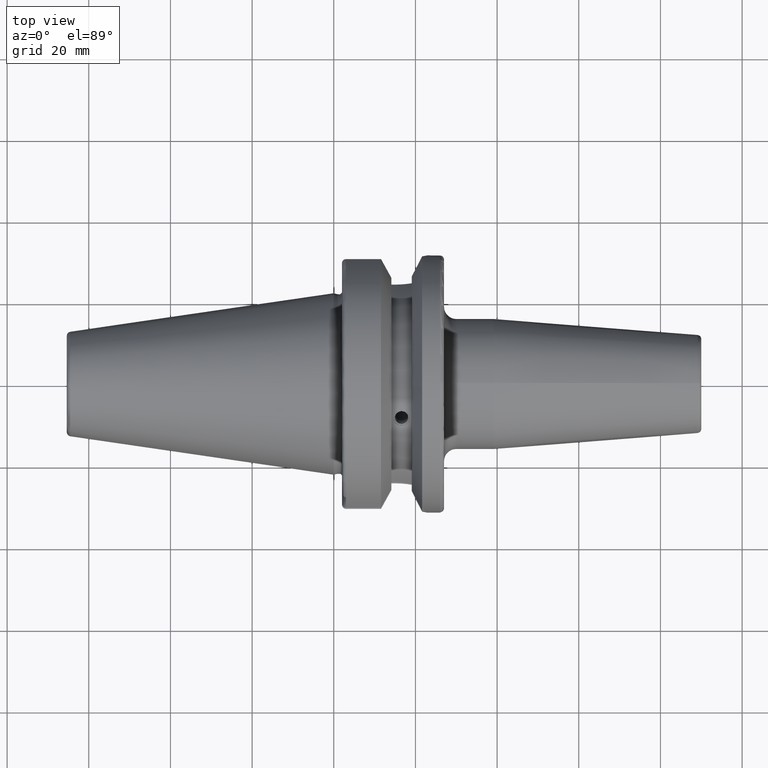
[diagram: clean part render]
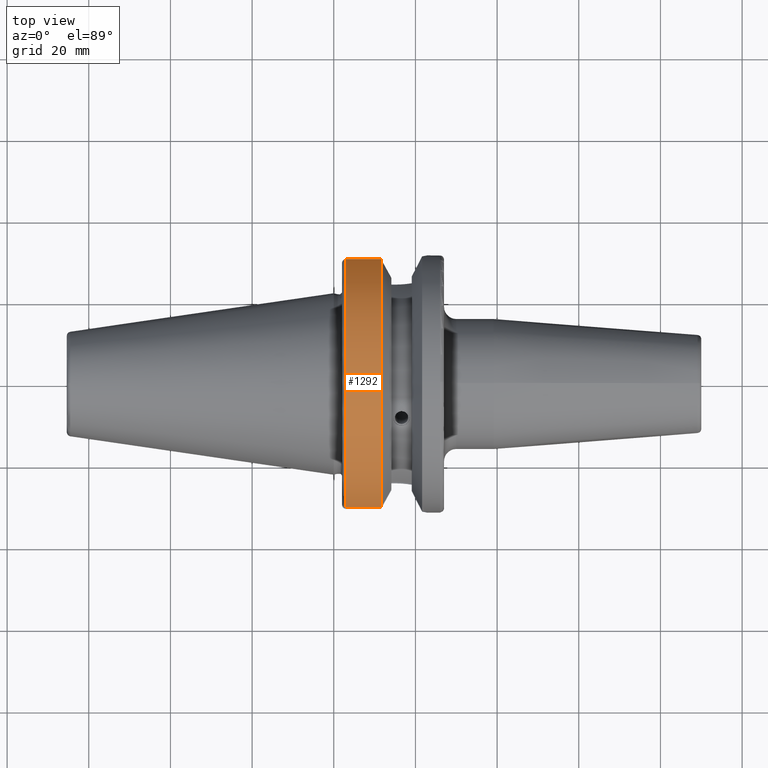
[diagram: same view with one face highlighted and labeled with its STEP entity id]
A machine part, top view. The second image highlights one B-rep face of the part: STEP entity #1292.
In plain terms, the highlighted cylindrical surface (partial cylindrical patch) has radius 31.5 mm, axis along (1, 0, 0).
Its self-contained STEP definition (entity closure, byte-faithful):
#118=CYLINDRICAL_SURFACE('',#1481,31.5);
#204=FACE_OUTER_BOUND('',#298,.T.);
#298=EDGE_LOOP('',(#1170,#1171,#1172,#1173));
#374=CIRCLE('',#1480,31.5);
#375=CIRCLE('',#1482,31.5000000000001);
#415=LINE('',#2298,#481);
#435=LINE('',#2452,#501);
#481=VECTOR('',#1729,10.);
#501=VECTOR('',#1797,10.);
#587=VERTEX_POINT('',#2293);
#588=VERTEX_POINT('',#2297);
#617=VERTEX_POINT('',#2440);
#618=VERTEX_POINT('',#2451);
#743=EDGE_CURVE('',#588,#587,#415,.T.);
#786=EDGE_CURVE('',#618,#617,#435,.T.);
#817=EDGE_CURVE('',#617,#588,#374,.T.);
#818=EDGE_CURVE('',#618,#587,#375,.T.);
#1170=ORIENTED_EDGE('',*,*,#743,.T.);
#1171=ORIENTED_EDGE('',*,*,#818,.F.);
#1172=ORIENTED_EDGE('',*,*,#786,.T.);
#1173=ORIENTED_EDGE('',*,*,#817,.T.);
#1292=ADVANCED_FACE('',(#204),#118,.T.);
#1480=AXIS2_PLACEMENT_3D('',#2517,#1878,#1879);
#1481=AXIS2_PLACEMENT_3D('',#2518,#1880,#1881);
#1482=AXIS2_PLACEMENT_3D('',#2519,#1882,#1883);
#1729=DIRECTION('',(1.,0.,0.));
#1797=DIRECTION('',(-1.,0.,0.));
#1878=DIRECTION('center_axis',(1.,0.,0.));
#1879=DIRECTION('ref_axis',(0.,0.,-1.));
#1880=DIRECTION('center_axis',(1.,0.,0.));
#1881=DIRECTION('ref_axis',(0.,1.,0.));
#1882=DIRECTION('center_axis',(1.,0.,0.));
#1883=DIRECTION('ref_axis',(0.,0.,-1.));
#2293=CARTESIAN_POINT('',(11.5690363073382,-30.4540227227866,8.05));
#2297=CARTESIAN_POINT('',(2.99999999999999,-30.4540227227866,8.05));
#2298=CARTESIAN_POINT('',(7.28451815366907,-30.4540227227866,8.05));
#2440=CARTESIAN_POINT('',(2.99999999999999,30.4540227227866,8.05));
#2451=CARTESIAN_POINT('',(11.5690363073382,30.4540227227866,8.05));
#2452=CARTESIAN_POINT('',(7.28451815366907,30.4540227227866,8.05));
#2517=CARTESIAN_POINT('Origin',(2.99999999999999,0.,0.));
#2518=CARTESIAN_POINT('Origin',(7.28451815366907,0.,0.));
#2519=CARTESIAN_POINT('Origin',(11.5690363073382,0.,0.));